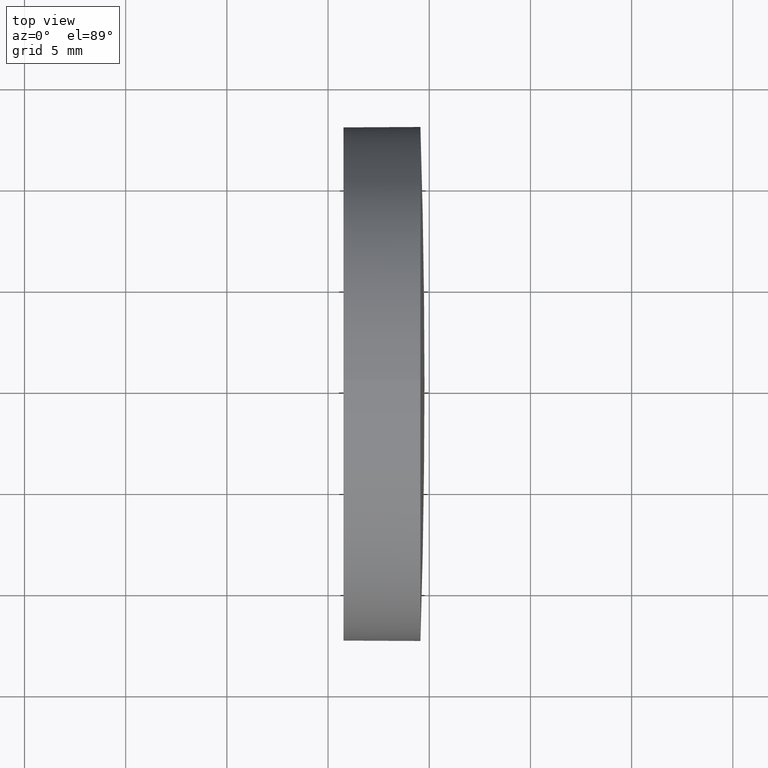
[diagram: clean part render]
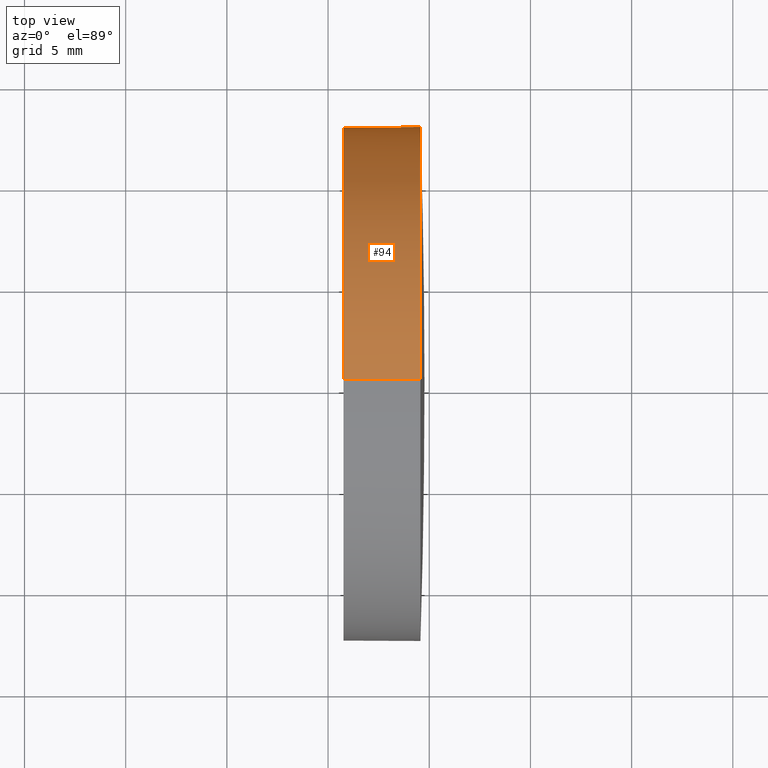
[diagram: same view with one face highlighted and labeled with its STEP entity id]
A machine part, top view. The second image highlights one B-rep face of the part: STEP entity #94.
In plain terms, the highlighted cylindrical surface (partial cylindrical patch) has radius 12.7 mm, axis along (-1, -0, -0).
Its self-contained STEP definition (entity closure, byte-faithful):
#1 = FACE_OUTER_BOUND ( 'NONE', #17, .T. ) ;
#3 = VERTEX_POINT ( 'NONE', #48 ) ;
#17 = EDGE_LOOP ( 'NONE', ( #132, #178, #114, #60, #51 ) ) ;
#18 = VERTEX_POINT ( 'NONE', #138 ) ;
#27 = CARTESIAN_POINT ( 'NONE',  ( 110.1653732284884500, 65.23355492641219700, 0.0000000000000000000 ) ) ;
#30 = DIRECTION ( 'NONE',  ( -1.000000000000000000, -0.0000000000000000000, -0.0000000000000000000 ) ) ;
#34 = VERTEX_POINT ( 'NONE', #182 ) ;
#44 = DIRECTION ( 'NONE',  ( -1.000000000000000000, -0.0000000000000000000, -0.0000000000000000000 ) ) ;
#45 = EDGE_CURVE ( 'NONE', #3, #154, #54, .T. ) ;
#48 = CARTESIAN_POINT ( 'NONE',  ( 119.5645554762011900, 65.23355492641219700, 12.70000000000000300 ) ) ;
#50 = DIRECTION ( 'NONE',  ( 0.0000000000000000000, 0.0000000000000000000, 1.000000000000000000 ) ) ;
#51 = ORIENTED_EDGE ( 'NONE', *, *, #80, .T. ) ;
#52 = AXIS2_PLACEMENT_3D ( 'NONE', #27, #87, #50 ) ;
#54 = LINE ( 'NONE', #108, #65 ) ;
#60 = ORIENTED_EDGE ( 'NONE', *, *, #45, .F. ) ;
#62 = CIRCLE ( 'NONE', #89, 12.70000000000000300 ) ;
#65 = VECTOR ( 'NONE', #44, 1000.000000000000000 ) ;
#70 = EDGE_CURVE ( 'NONE', #154, #133, #90, .T. ) ;
#72 = LINE ( 'NONE', #77, #109 ) ;
#77 = CARTESIAN_POINT ( 'NONE',  ( 110.1653732284884500, 65.23355492641219700, -12.70000000000000300 ) ) ;
#80 = EDGE_CURVE ( 'NONE', #3, #18, #174, .T. ) ;
#87 = DIRECTION ( 'NONE',  ( -1.000000000000000000, -0.0000000000000000000, -0.0000000000000000000 ) ) ;
#89 = AXIS2_PLACEMENT_3D ( 'NONE', #103, #172, #128 ) ;
#90 = CIRCLE ( 'NONE', #118, 12.70000000000000300 ) ;
#94 = ADVANCED_FACE ( 'NONE', ( #1 ), #181, .T. ) ;
#96 = EDGE_CURVE ( 'NONE', #34, #133, #72, .T. ) ;
#103 = CARTESIAN_POINT ( 'NONE',  ( 119.5645554762011900, 65.23355492641219700, 0.0000000000000000000 ) ) ;
#108 = CARTESIAN_POINT ( 'NONE',  ( 110.1653732284884500, 65.23355492641219700, 12.70000000000000300 ) ) ;
#109 = VECTOR ( 'NONE', #173, 1000.000000000000000 ) ;
#113 = CARTESIAN_POINT ( 'NONE',  ( 119.5645554762011900, 65.23355492641219700, 0.0000000000000000000 ) ) ;
#114 = ORIENTED_EDGE ( 'NONE', *, *, #70, .F. ) ;
#116 = DIRECTION ( 'NONE',  ( 0.0000000000000000000, 0.0000000000000000000, 1.000000000000000000 ) ) ;
#118 = AXIS2_PLACEMENT_3D ( 'NONE', #141, #30, #116 ) ;
#128 = DIRECTION ( 'NONE',  ( 0.0000000000000000000, 0.0000000000000000000, 1.000000000000000000 ) ) ;
#129 = DIRECTION ( 'NONE',  ( -1.000000000000000000, -0.0000000000000000000, -0.0000000000000000000 ) ) ;
#132 = ORIENTED_EDGE ( 'NONE', *, *, #163, .T. ) ;
#133 = VERTEX_POINT ( 'NONE', #140 ) ;
#137 = AXIS2_PLACEMENT_3D ( 'NONE', #113, #129, #139 ) ;
#138 = CARTESIAN_POINT ( 'NONE',  ( 119.5645554762012400, 77.93355492641204300, 1.555301434917064100E-015 ) ) ;
#139 = DIRECTION ( 'NONE',  ( 0.0000000000000000000, 0.0000000000000000000, 1.000000000000000000 ) ) ;
#140 = CARTESIAN_POINT ( 'NONE',  ( 115.7645554762012000, 65.23355492641219700, -12.70000000000000300 ) ) ;
#141 = CARTESIAN_POINT ( 'NONE',  ( 115.7645554762012000, 65.23355492641219700, 0.0000000000000000000 ) ) ;
#154 = VERTEX_POINT ( 'NONE', #171 ) ;
#163 = EDGE_CURVE ( 'NONE', #18, #34, #62, .T. ) ;
#171 = CARTESIAN_POINT ( 'NONE',  ( 115.7645554762012000, 65.23355492641219700, 12.70000000000000300 ) ) ;
#172 = DIRECTION ( 'NONE',  ( -1.000000000000000000, -0.0000000000000000000, -0.0000000000000000000 ) ) ;
#173 = DIRECTION ( 'NONE',  ( -1.000000000000000000, -0.0000000000000000000, -0.0000000000000000000 ) ) ;
#174 = CIRCLE ( 'NONE', #137, 12.70000000000000300 ) ;
#178 = ORIENTED_EDGE ( 'NONE', *, *, #96, .T. ) ;
#181 = CYLINDRICAL_SURFACE ( 'NONE', #52, 12.70000000000000300 ) ;
#182 = CARTESIAN_POINT ( 'NONE',  ( 119.5645554762011900, 65.23355492641219700, -12.70000000000000300 ) ) ;